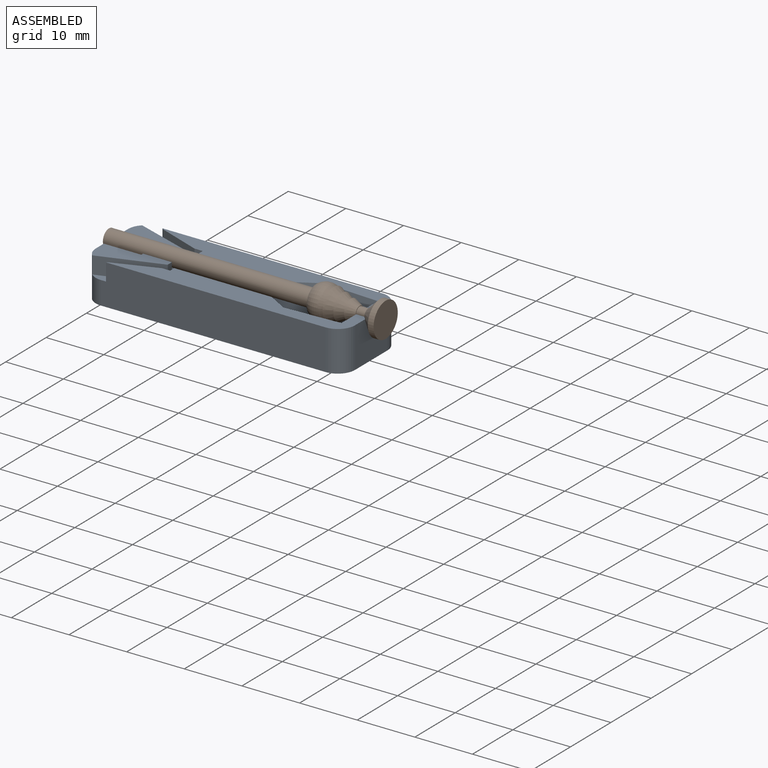
[diagram: assembled view]
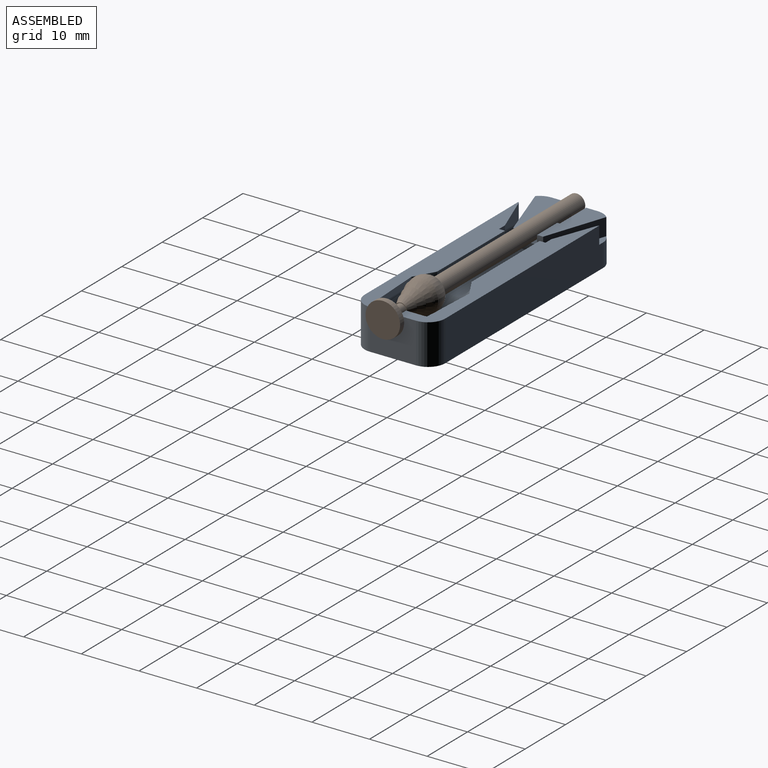
[diagram: assembled view, second angle]
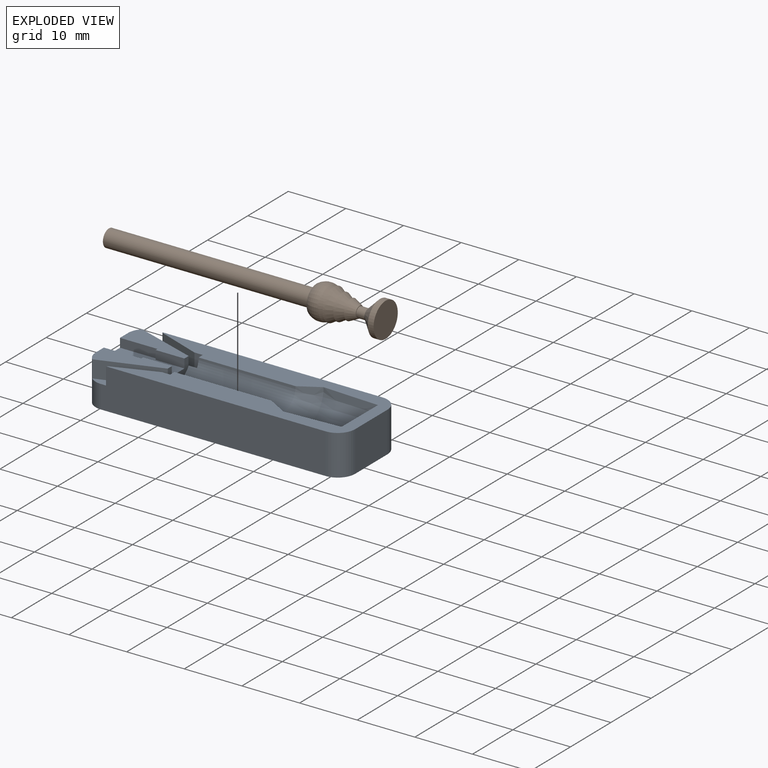
[diagram: exploded view]
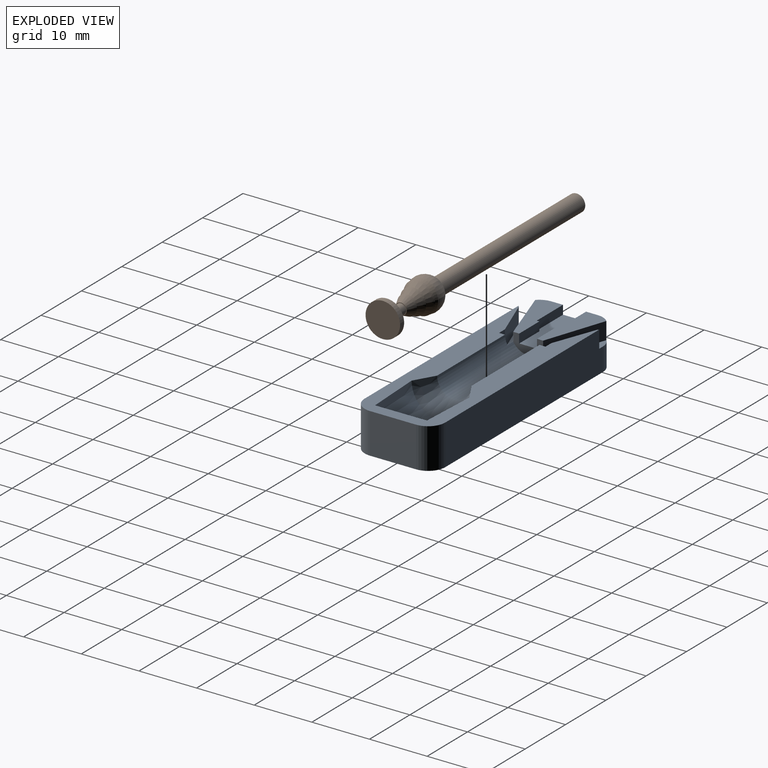
[diagram: exploded view, second angle]
ASSEMBLY  parts=2 mates=2
PART A: 38 faces, bbox 45x14x7 mm
  f0: plane 11.5x4.62mm, normal (0,0,1), area 30.7mm2, adj f1,f13,f14,f22,f34,f35,f36
  f1: plane 8x7mm, normal (-1,0,0), area 49.8mm2, adj f0,f3,f6,f9,f14,f33,f34,f37
  f2: plane 39x7mm, normal (0,-1,0), area 270.4mm2, adj f4,f9,f14,f15,f19,f23
  f3: plane 11.5x4.62mm, normal (0,0,1), area 30.7mm2, adj f1,f6,f13,f28,f31,f32,f33
  f4: plane 41.12x14mm, normal (0,0,1), area 255.6mm2, adj f2,f5,f7,f8,f10,f11,f12,f15
  f5: cylinder r=3mm len=18.27mm, axis (1,0,0), area 167.6mm2, adj f4,f12,f13,f17,f18,f24,f25
  f6: cylinder r=3mm len=7mm, axis (0,0,-1), area 26.1mm2, adj f1,f3,f7,f9,f27,f28
  f7: plane 39x7mm, normal (0,1,0), area 270.4mm2, adj f4,f6,f9,f16,f26,f27
  f8: plane 8x7mm, normal (1,0,0), area 56mm2, adj f4,f9,f15,f16
  f9: plane 45x14mm, normal (0,0,-1), area 622.3mm2, adj f1,f2,f6,f7,f8,f14,f15,f16
  f10: plane 9x4.5mm, normal (-1,0,0), area 31.8mm2, adj f4,f11
  f11: cone r=5mm half-angle=2.9deg, axis (-1,0,0), area 146mm2, adj f4,f10,f12
  f12: cone r=5mm half-angle=30deg, axis (1,0,0), area 50.3mm2, adj f4,f5,f11
  f13: plane 5.19x3mm, normal (1,0,0), area 8.5mm2, adj f0,f3,f5,f22,f28,f31,f36,f37
  f14: cylinder r=3mm len=7mm, axis (0,0,1), area 26.1mm2, adj f0,f1,f2,f9,f22,f23
  f15: cylinder r=3mm len=7mm, axis (0,0,-1), area 33mm2, adj f2,f4,f8,f9
  f16: cylinder r=3mm len=7mm, axis (0,0,1), area 33mm2, adj f4,f7,f8,f9
  f17: plane 3x1.43mm, normal (-1,0,0), area 3.9mm2, adj f4,f5,f18,f21,f23
  f18: plane 1.5x1.45mm, normal (0,-1,0), area 2.2mm2, adj f5,f17,f22,f23
  f19: cylinder r=1.93mm len=3mm, axis (0,0,1), area 1mm2, adj f2,f4,f20,f23
  f20: plane 7.37x3mm, normal (-0.35,0.94,0), area 23.6mm2, adj f4,f19,f21,f23
  f21: plane 3x1.45mm, normal (0,1,0), area 4.3mm2, adj f4,f17,f20,f23
  f22: plane 10.57x3.58mm, normal (0.32,-0.95,0), area 33.5mm2, adj f0,f13,f14,f18,f23
  f23: plane 12.02x4.4mm, normal (0,0,1), area 17.4mm2, adj f2,f14,f17,f18,f19,f20,f21,f22
  f24: plane 3x1.43mm, normal (-1,0,0), area 3.9mm2, adj f4,f5,f25,f27,f29
  f25: plane 1.5x1.45mm, normal (0,1,0), area 2.2mm2, adj f5,f24,f27,f28
  f26: cylinder r=1.93mm len=3mm, axis (0,0,1), area 1mm2, adj f4,f7,f27,f30
  f27: plane 12.02x4.4mm, normal (0,0,1), area 17.4mm2, adj f6,f7,f24,f25,f26,f28,f29,f30
  f28: plane 10.57x3.58mm, normal (0.32,0.95,0), area 33.5mm2, adj f3,f6,f13,f25,f27
  f29: plane 3x1.45mm, normal (0,-1,0), area 4.3mm2, adj f4,f24,f27,f30
  f30: plane 7.37x3mm, normal (-0.35,-0.94,0), area 23.6mm2, adj f4,f26,f27,f29
  f31: plane 5x1.55mm, normal (0,-1,0), area 7.8mm2, adj f3,f13,f32,f37
  f32: plane 1.55x0.45mm, normal (-1,0,0), area 0.7mm2, adj f3,f31,f33,f37
  f33: plane 6.5x1.55mm, normal (0,-1,0), area 10.1mm2, adj f1,f3,f32,f37
  f34: plane 6.5x1.55mm, normal (0,1,0), area 10.1mm2, adj f0,f1,f35,f37
  f35: plane 1.55x0.45mm, normal (-1,0,0), area 0.7mm2, adj f0,f34,f36,f37
  f36: plane 5x1.55mm, normal (0,1,0), area 7.8mm2, adj f0,f13,f35,f37
  f37: plane 11.5x4mm, normal (0,0,1), area 41.5mm2, adj f1,f13,f31,f32,f33,f34,f35,f36
PART B: 17 faces, bbox 48x6x6 mm
  f0: plane 2x2mm, normal (1,0,0), area 0.6mm2, adj f1,f16
  f1: cone r=1.73mm half-angle=25.6deg, axis (-1,0,0), area 14.4mm2, adj f0,f2
  f2: plane 3.45x3.45mm, normal (-1,0,0), area 3.8mm2, adj f1,f3
  f3: cone r=2.25mm half-angle=31.6deg, axis (-1,0,0), area 19.8mm2, adj f2,f4
  f4: plane 4.49x4.49mm, normal (-1,0,0), area 5.1mm2, adj f3,f5
  f5: cone r=2.77mm half-angle=31.6deg, axis (-1,0,0), area 25.5mm2, adj f4,f6
  f6: plane 5.54x5.54mm, normal (-1,0,0), area 6.5mm2, adj f5,f7
  f7: cone r=2.8mm half-angle=32.7deg, axis (-1,0,0), area 13.1mm2, adj f6,f8
  f8: torus R=0.44mm, axis (-1,0,0), area 43.3mm2, adj f7,f9
  f9: plane 4.89x4.89mm, normal (-1,0,0), area 11.7mm2, adj f8,f10
  f10: cylinder r=1.5mm len=36mm, axis (-1,0,0), area 339.3mm2, adj f9,f11
  f11: plane 3x3mm, normal (-1,0,0), area 7.1mm2, adj f10
  f12: plane 6x6mm, normal (1,0,0), area 28.3mm2, adj f13
  f13: cylinder r=3mm len=6mm, axis (-1,0,0), area 18.8mm2, adj f12,f14
  f14: cone r=1mm half-angle=45deg, axis (1,0,0), area 35.5mm2, adj f13,f15
  f15: plane 2x2mm, normal (-1,0,0), area 0.6mm2, adj f14,f16
  f16: cylinder r=0.89mm len=1.79mm, axis (-1,0,0), area 8.4mm2, adj f0,f15
PLACE A t=(19.72,10.3,-1.91)mm
PLACE B t=(11.1,10.3,-0.34)mm
MATE planar B.f1 <-> A.f10  axis (1,0,0) through (21.22,10.3,-1.91)mm
MATE slider A.f5 <-> B.f1  axis (1,0,0) through (-1.15,10.3,-1.91)mm
